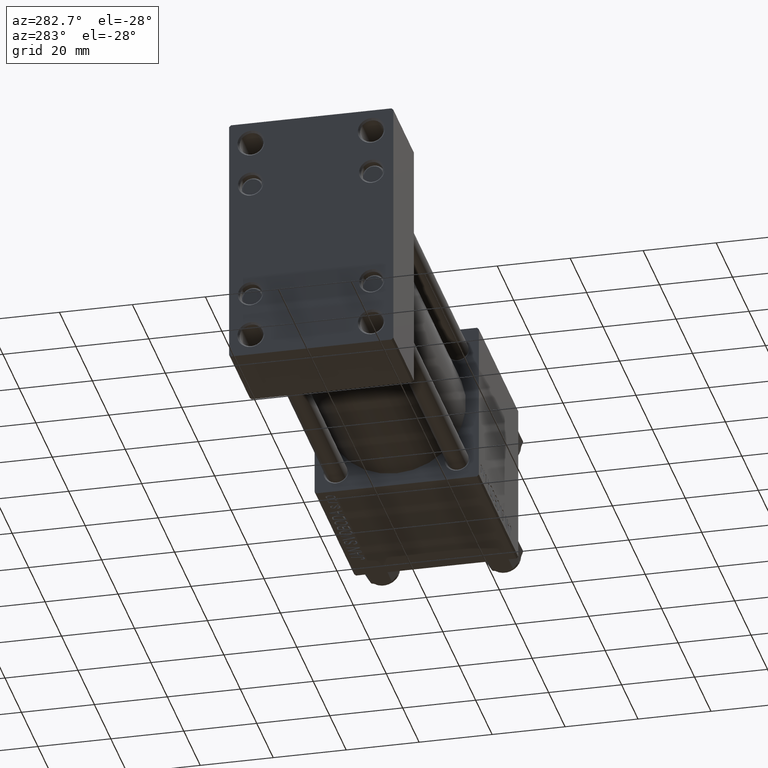
[diagram: clean part render]
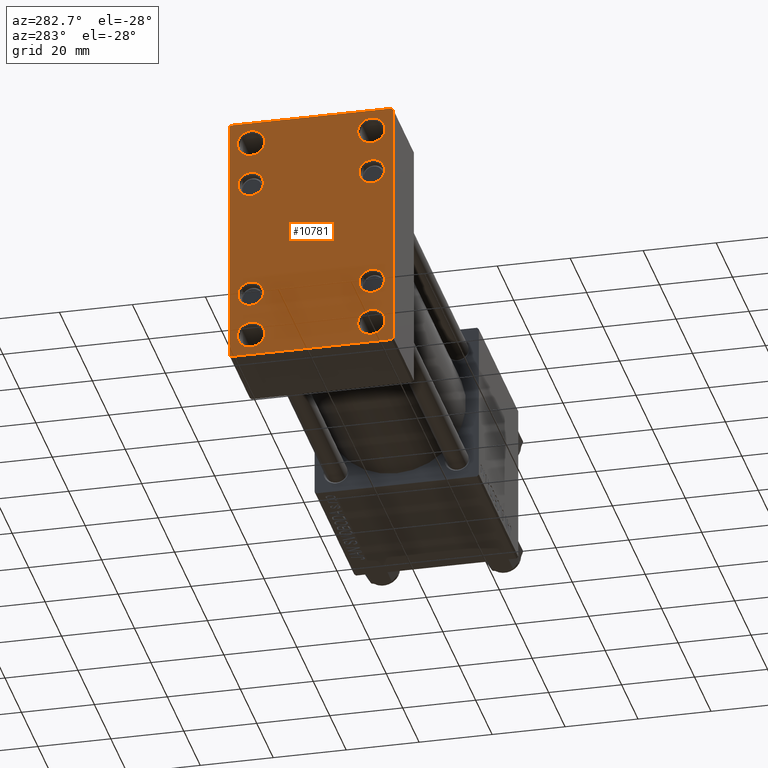
[diagram: same view with one face highlighted and labeled with its STEP entity id]
A machine part, auxiliary view. The second image highlights one B-rep face of the part: STEP entity #10781.
In plain terms, the highlighted planar face has unit normal (-1, 0, 0).
Its self-contained STEP definition (entity closure, byte-faithful):
#123 = CARTESIAN_POINT ( 'NONE',  ( 0.000000000000000000, -16.50000000000000711, 32.74999999999997868 ) ) ;
#331 = VERTEX_POINT ( 'NONE', #2895 ) ;
#456 = VERTEX_POINT ( 'NONE', #43767 ) ;
#591 = AXIS2_PLACEMENT_3D ( 'NONE', #47599, #44306, #2127 ) ;
#599 = ORIENTED_EDGE ( 'NONE', *, *, #5272, .T. ) ;
#639 = ORIENTED_EDGE ( 'NONE', *, *, #27203, .T. ) ;
#1086 = VERTEX_POINT ( 'NONE', #25278 ) ;
#1288 = CIRCLE ( 'NONE', #24661, 3.750000000000013767 ) ;
#1355 = LINE ( 'NONE', #1851, #23888 ) ;
#1421 = DIRECTION ( 'NONE',  ( -0.000000000000000000, 0.000000000000000000, 1.000000000000000000 ) ) ;
#1540 = DIRECTION ( 'NONE',  ( 0.000000000000000000, 0.000000000000000000, 1.000000000000000000 ) ) ;
#1706 = ORIENTED_EDGE ( 'NONE', *, *, #17230, .T. ) ;
#1834 = VERTEX_POINT ( 'NONE', #39962 ) ;
#1851 = CARTESIAN_POINT ( 'NONE',  ( -0.000000000000000000, -28.50000000000015632, 28.49999999999976197 ) ) ;
#2127 = DIRECTION ( 'NONE',  ( 0.000000000000000000, 0.000000000000000000, 1.000000000000000000 ) ) ;
#2240 = CIRCLE ( 'NONE', #591, 3.499999999999996003 ) ;
#2866 = LINE ( 'NONE', #7136, #28806 ) ;
#2895 = CARTESIAN_POINT ( 'NONE',  ( 0.000000000000000000, -16.59999999999999076, -13.10000000000001030 ) ) ;
#2932 = VERTEX_POINT ( 'NONE', #34600 ) ;
#2950 = VERTEX_POINT ( 'NONE', #14904 ) ;
#3037 = LINE ( 'NONE', #45468, #36920 ) ;
#3619 = CARTESIAN_POINT ( 'NONE',  ( 0.000000000000000000, 16.49999999999999289, -29.00000000000000711 ) ) ;
#4254 = AXIS2_PLACEMENT_3D ( 'NONE', #28460, #44154, #24416 ) ;
#4304 = CIRCLE ( 'NONE', #28515, 3.499999999999996003 ) ;
#4755 = ORIENTED_EDGE ( 'NONE', *, *, #10919, .T. ) ;
#4783 = DIRECTION ( 'NONE',  ( 0.000000000000000000, 0.000000000000000000, 1.000000000000000000 ) ) ;
#4956 = FACE_BOUND ( 'NONE', #22044, .T. ) ;
#4999 = VERTEX_POINT ( 'NONE', #8646 ) ;
#5272 = EDGE_CURVE ( 'NONE', #35669, #34070, #19633, .T. ) ;
#5386 = CIRCLE ( 'NONE', #45786, 3.499999999999996003 ) ;
#5450 = FACE_BOUND ( 'NONE', #35214, .T. ) ;
#5648 = CARTESIAN_POINT ( 'NONE',  ( 0.000000000000000000, -21.99999999999998934, -35.00000000000000000 ) ) ;
#5816 = CARTESIAN_POINT ( 'NONE',  ( 0.000000000000000000, 16.49999999999999289, 28.99999999999998934 ) ) ;
#5839 = VERTEX_POINT ( 'NONE', #37982 ) ;
#5933 = AXIS2_PLACEMENT_3D ( 'NONE', #47269, #8848, #38924 ) ;
#6080 = EDGE_CURVE ( 'NONE', #27142, #34409, #36684, .T. ) ;
#6136 = EDGE_CURVE ( 'NONE', #24466, #2950, #6793, .T. ) ;
#6412 = EDGE_LOOP ( 'NONE', ( #7045, #18667 ) ) ;
#6438 = DIRECTION ( 'NONE',  ( 0.000000000000000000, 0.000000000000000000, 1.000000000000000000 ) ) ;
#6582 = ORIENTED_EDGE ( 'NONE', *, *, #44814, .T. ) ;
#6793 = CIRCLE ( 'NONE', #20459, 3.750000000000017319 ) ;
#6964 = ORIENTED_EDGE ( 'NONE', *, *, #8452, .T. ) ;
#7045 = ORIENTED_EDGE ( 'NONE', *, *, #10238, .T. ) ;
#7132 = CARTESIAN_POINT ( 'NONE',  ( 0.000000000000000000, -22.49999999999999645, 35.00000000000000000 ) ) ;
#7136 = CARTESIAN_POINT ( 'NONE',  ( 0.000000000000000000, 22.50000000000000355, 35.00000000000000711 ) ) ;
#8231 = EDGE_CURVE ( 'NONE', #13176, #1834, #4304, .T. ) ;
#8452 = EDGE_CURVE ( 'NONE', #33132, #49482, #35767, .T. ) ;
#8550 = VERTEX_POINT ( 'NONE', #28790 ) ;
#8646 = CARTESIAN_POINT ( 'NONE',  ( 0.000000000000000000, -22.49999999999999645, -34.50000000000000000 ) ) ;
#8728 = CARTESIAN_POINT ( 'NONE',  ( 0.000000000000000000, -16.59999999999999076, 16.60000000000000853 ) ) ;
#8848 = DIRECTION ( 'NONE',  ( 1.000000000000000000, -0.000000000000000000, 0.000000000000000000 ) ) ;
#8977 = DIRECTION ( 'NONE',  ( 1.000000000000000000, -0.000000000000000000, 0.000000000000000000 ) ) ;
#8987 = FACE_BOUND ( 'NONE', #32891, .T. ) ;
#9060 = DIRECTION ( 'NONE',  ( 1.000000000000000000, -0.000000000000000000, 0.000000000000000000 ) ) ;
#9298 = DIRECTION ( 'NONE',  ( 0.000000000000000000, 0.000000000000000000, 1.000000000000000000 ) ) ;
#9382 = CIRCLE ( 'NONE', #38416, 3.499999999999996003 ) ;
#9386 = DIRECTION ( 'NONE',  ( 1.000000000000000000, -0.000000000000000000, 0.000000000000000000 ) ) ;
#9619 = CARTESIAN_POINT ( 'NONE',  ( 0.000000000000000000, -16.59999999999999076, -20.10000000000000497 ) ) ;
#9811 = DIRECTION ( 'NONE',  ( 1.000000000000000000, -0.000000000000000000, 0.000000000000000000 ) ) ;
#10238 = EDGE_CURVE ( 'NONE', #2950, #24466, #30173, .T. ) ;
#10239 = CIRCLE ( 'NONE', #26372, 3.499999999999996003 ) ;
#10415 = CARTESIAN_POINT ( 'NONE',  ( 0.000000000000000000, 22.50000000000000355, 34.49999999999999289 ) ) ;
#10470 = DIRECTION ( 'NONE',  ( 1.000000000000000000, -0.000000000000000000, 0.000000000000000000 ) ) ;
#10781 = ADVANCED_FACE ( 'NONE', ( #35748, #35249, #4956, #8987, #27668, #5450, #31709, #32211, #24630 ), #12263, .T. ) ;
#10822 = AXIS2_PLACEMENT_3D ( 'NONE', #20570, #43110, #1421 ) ;
#10919 = EDGE_CURVE ( 'NONE', #34070, #35669, #17307, .T. ) ;
#11236 = ORIENTED_EDGE ( 'NONE', *, *, #14648, .T. ) ;
#11752 = AXIS2_PLACEMENT_3D ( 'NONE', #43341, #24106, #38551 ) ;
#12250 = CARTESIAN_POINT ( 'NONE',  ( 0.000000000000000000, -16.59999999999999076, 13.10000000000001030 ) ) ;
#12263 = PLANE ( 'NONE',  #10822 ) ;
#12480 = ORIENTED_EDGE ( 'NONE', *, *, #46417, .T. ) ;
#12769 = AXIS2_PLACEMENT_3D ( 'NONE', #3619, #45802, #26564 ) ;
#12935 = DIRECTION ( 'NONE',  ( 0.000000000000000000, -1.000000000000000000, -1.541976423090495387E-16 ) ) ;
#13134 = EDGE_CURVE ( 'NONE', #22292, #39337, #20599, .T. ) ;
#13176 = VERTEX_POINT ( 'NONE', #12250 ) ;
#13560 = CARTESIAN_POINT ( 'NONE',  ( 0.000000000000000000, 28.49999999999984013, -28.50000000000024158 ) ) ;
#13824 = EDGE_CURVE ( 'NONE', #5839, #2932, #1288, .T. ) ;
#14316 = EDGE_CURVE ( 'NONE', #29186, #1086, #1355, .T. ) ;
#14648 = EDGE_CURVE ( 'NONE', #1834, #13176, #9382, .T. ) ;
#14904 = CARTESIAN_POINT ( 'NONE',  ( 0.000000000000000000, 16.49999999999999289, 32.75000000000000711 ) ) ;
#15518 = VERTEX_POINT ( 'NONE', #9619 ) ;
#15904 = VERTEX_POINT ( 'NONE', #10415 ) ;
#15967 = EDGE_CURVE ( 'NONE', #29186, #4999, #41744, .T. ) ;
#16256 = EDGE_CURVE ( 'NONE', #8550, #21685, #5386, .T. ) ;
#16730 = EDGE_CURVE ( 'NONE', #49482, #33132, #2240, .T. ) ;
#16763 = VERTEX_POINT ( 'NONE', #17242 ) ;
#16890 = EDGE_CURVE ( 'NONE', #15904, #16763, #2866, .T. ) ;
#16990 = CARTESIAN_POINT ( 'NONE',  ( 0.000000000000000000, -16.50000000000000711, -32.75000000000002132 ) ) ;
#17216 = CARTESIAN_POINT ( 'NONE',  ( 0.000000000000000000, 16.49999999999999289, 28.99999999999998934 ) ) ;
#17230 = EDGE_CURVE ( 'NONE', #15518, #331, #10239, .T. ) ;
#17242 = CARTESIAN_POINT ( 'NONE',  ( 0.000000000000000000, 22.50000000000000355, -34.49999999999999289 ) ) ;
#17307 = CIRCLE ( 'NONE', #36680, 3.750000000000013767 ) ;
#17375 = DIRECTION ( 'NONE',  ( 0.000000000000000000, 0.000000000000000000, 1.000000000000000000 ) ) ;
#17382 = DIRECTION ( 'NONE',  ( 1.000000000000000000, -0.000000000000000000, 0.000000000000000000 ) ) ;
#17865 = DIRECTION ( 'NONE',  ( 0.000000000000000000, 0.000000000000000000, 1.000000000000000000 ) ) ;
#18667 = ORIENTED_EDGE ( 'NONE', *, *, #6136, .T. ) ;
#18942 = CARTESIAN_POINT ( 'NONE',  ( 0.000000000000000000, -16.50000000000000711, -29.00000000000000711 ) ) ;
#19633 = CIRCLE ( 'NONE', #47921, 3.750000000000013767 ) ;
#19701 = AXIS2_PLACEMENT_3D ( 'NONE', #5816, #35868, #1540 ) ;
#20459 = AXIS2_PLACEMENT_3D ( 'NONE', #17216, #21005, #28090 ) ;
#20570 = CARTESIAN_POINT ( 'NONE',  ( 0.000000000000000000, 0.000000000000000000, 0.000000000000000000 ) ) ;
#20599 = CIRCLE ( 'NONE', #11752, 3.749999999999989342 ) ;
#20708 = EDGE_CURVE ( 'NONE', #34409, #4999, #42593, .T. ) ;
#20999 = VECTOR ( 'NONE', #30352, 999.9999999999998863 ) ;
#21005 = DIRECTION ( 'NONE',  ( 1.000000000000000000, -0.000000000000000000, 0.000000000000000000 ) ) ;
#21685 = VERTEX_POINT ( 'NONE', #48886 ) ;
#22044 = EDGE_LOOP ( 'NONE', ( #599, #4755 ) ) ;
#22149 = CARTESIAN_POINT ( 'NONE',  ( 0.000000000000000000, -16.59999999999999076, -16.60000000000000853 ) ) ;
#22292 = VERTEX_POINT ( 'NONE', #31208 ) ;
#22655 = CARTESIAN_POINT ( 'NONE',  ( 0.000000000000000000, -16.50000000000000711, 28.99999999999998934 ) ) ;
#22950 = DIRECTION ( 'NONE',  ( 0.000000000000000000, -1.000000000000000000, -1.541976423090495387E-16 ) ) ;
#23092 = EDGE_LOOP ( 'NONE', ( #6582, #25469 ) ) ;
#23103 = EDGE_CURVE ( 'NONE', #456, #1086, #3037, .T. ) ;
#23728 = DIRECTION ( 'NONE',  ( 1.000000000000000000, -0.000000000000000000, 0.000000000000000000 ) ) ;
#23888 = VECTOR ( 'NONE', #24813, 1000.000000000000000 ) ;
#24106 = DIRECTION ( 'NONE',  ( 1.000000000000000000, -0.000000000000000000, 0.000000000000000000 ) ) ;
#24416 = DIRECTION ( 'NONE',  ( 0.000000000000000000, 0.000000000000000000, 1.000000000000000000 ) ) ;
#24466 = VERTEX_POINT ( 'NONE', #47200 ) ;
#24593 = EDGE_CURVE ( 'NONE', #16763, #27142, #25175, .T. ) ;
#24630 = FACE_OUTER_BOUND ( 'NONE', #26157, .T. ) ;
#24661 = AXIS2_PLACEMENT_3D ( 'NONE', #32018, #47708, #9298 ) ;
#24813 = DIRECTION ( 'NONE',  ( -0.000000000000000000, 0.7071067811865426878, 0.7071067811865524577 ) ) ;
#25175 = LINE ( 'NONE', #13560, #35295 ) ;
#25278 = CARTESIAN_POINT ( 'NONE',  ( 0.000000000000000000, -21.99999999999998934, 35.00000000000000000 ) ) ;
#25403 = CIRCLE ( 'NONE', #36698, 3.499999999999996003 ) ;
#25469 = ORIENTED_EDGE ( 'NONE', *, *, #13134, .T. ) ;
#25742 = DIRECTION ( 'NONE',  ( 0.000000000000000000, 0.000000000000000000, 1.000000000000000000 ) ) ;
#25903 = ORIENTED_EDGE ( 'NONE', *, *, #14316, .T. ) ;
#26157 = EDGE_LOOP ( 'NONE', ( #33917, #47822, #43089, #34168, #33350, #25903, #46873, #31555 ) ) ;
#26372 = AXIS2_PLACEMENT_3D ( 'NONE', #22149, #17382, #17865 ) ;
#26398 = ORIENTED_EDGE ( 'NONE', *, *, #41108, .T. ) ;
#26550 = CARTESIAN_POINT ( 'NONE',  ( 0.000000000000000000, 28.50000000000030909, 28.49999999999952038 ) ) ;
#26564 = DIRECTION ( 'NONE',  ( 0.000000000000000000, 0.000000000000000000, 1.000000000000000000 ) ) ;
#26581 = EDGE_LOOP ( 'NONE', ( #11236, #42069 ) ) ;
#27142 = VERTEX_POINT ( 'NONE', #28877 ) ;
#27203 = EDGE_CURVE ( 'NONE', #2932, #5839, #45044, .T. ) ;
#27298 = LINE ( 'NONE', #26550, #20999 ) ;
#27668 = FACE_BOUND ( 'NONE', #26581, .T. ) ;
#28090 = DIRECTION ( 'NONE',  ( 0.000000000000000000, 0.000000000000000000, 1.000000000000000000 ) ) ;
#28214 = DIRECTION ( 'NONE',  ( -0.000000000000000000, -0.7071067811865525687, -0.7071067811865425767 ) ) ;
#28241 = CARTESIAN_POINT ( 'NONE',  ( 0.000000000000000000, 16.59999999999999787, 16.60000000000000497 ) ) ;
#28405 = DIRECTION ( 'NONE',  ( 0.000000000000000000, 0.000000000000000000, 1.000000000000000000 ) ) ;
#28460 = CARTESIAN_POINT ( 'NONE',  ( 0.000000000000000000, -16.59999999999999076, -16.60000000000000853 ) ) ;
#28515 = AXIS2_PLACEMENT_3D ( 'NONE', #8728, #8977, #28405 ) ;
#28790 = CARTESIAN_POINT ( 'NONE',  ( 0.000000000000000000, 16.59999999999999787, 13.10000000000000675 ) ) ;
#28806 = VECTOR ( 'NONE', #37448, 1000.000000000000000 ) ;
#28877 = CARTESIAN_POINT ( 'NONE',  ( 0.000000000000000000, 21.99999999999999645, -34.99999999999999289 ) ) ;
#29186 = VERTEX_POINT ( 'NONE', #39972 ) ;
#30173 = CIRCLE ( 'NONE', #19701, 3.750000000000017319 ) ;
#30352 = DIRECTION ( 'NONE',  ( 0.000000000000000000, 0.7071067811865376918, -0.7071067811865574537 ) ) ;
#30945 = DIRECTION ( 'NONE',  ( 0.000000000000000000, -0.7071067811865426878, 0.7071067811865524577 ) ) ;
#31208 = CARTESIAN_POINT ( 'NONE',  ( 0.000000000000000000, -16.50000000000000711, 25.25000000000000000 ) ) ;
#31555 = ORIENTED_EDGE ( 'NONE', *, *, #33087, .T. ) ;
#31709 = FACE_BOUND ( 'NONE', #46827, .T. ) ;
#32018 = CARTESIAN_POINT ( 'NONE',  ( 0.000000000000000000, 16.49999999999999289, -29.00000000000000711 ) ) ;
#32211 = FACE_BOUND ( 'NONE', #41564, .T. ) ;
#32587 = AXIS2_PLACEMENT_3D ( 'NONE', #22655, #9386, #45683 ) ;
#32814 = VECTOR ( 'NONE', #32904, 1000.000000000000000 ) ;
#32891 = EDGE_LOOP ( 'NONE', ( #39293, #639 ) ) ;
#32904 = DIRECTION ( 'NONE',  ( 0.000000000000000000, 0.000000000000000000, -1.000000000000000000 ) ) ;
#33087 = EDGE_CURVE ( 'NONE', #456, #15904, #27298, .T. ) ;
#33132 = VERTEX_POINT ( 'NONE', #35130 ) ;
#33350 = ORIENTED_EDGE ( 'NONE', *, *, #15967, .F. ) ;
#33917 = ORIENTED_EDGE ( 'NONE', *, *, #16890, .T. ) ;
#34070 = VERTEX_POINT ( 'NONE', #16990 ) ;
#34168 = ORIENTED_EDGE ( 'NONE', *, *, #20708, .T. ) ;
#34409 = VERTEX_POINT ( 'NONE', #5648 ) ;
#34600 = CARTESIAN_POINT ( 'NONE',  ( 0.000000000000000000, 16.49999999999999289, -32.75000000000002132 ) ) ;
#35130 = CARTESIAN_POINT ( 'NONE',  ( 0.000000000000000000, 16.59999999999999787, -20.10000000000000142 ) ) ;
#35214 = EDGE_LOOP ( 'NONE', ( #26398, #1706 ) ) ;
#35249 = FACE_BOUND ( 'NONE', #23092, .T. ) ;
#35295 = VECTOR ( 'NONE', #28214, 999.9999999999998863 ) ;
#35669 = VERTEX_POINT ( 'NONE', #39693 ) ;
#35748 = FACE_BOUND ( 'NONE', #6412, .T. ) ;
#35767 = CIRCLE ( 'NONE', #5933, 3.499999999999996003 ) ;
#35868 = DIRECTION ( 'NONE',  ( 1.000000000000000000, -0.000000000000000000, 0.000000000000000000 ) ) ;
#36680 = AXIS2_PLACEMENT_3D ( 'NONE', #48148, #10470, #6438 ) ;
#36684 = LINE ( 'NONE', #47573, #37321 ) ;
#36698 = AXIS2_PLACEMENT_3D ( 'NONE', #28241, #9060, #4783 ) ;
#36845 = ORIENTED_EDGE ( 'NONE', *, *, #16256, .T. ) ;
#36920 = VECTOR ( 'NONE', #22950, 1000.000000000000000 ) ;
#37321 = VECTOR ( 'NONE', #12935, 1000.000000000000000 ) ;
#37448 = DIRECTION ( 'NONE',  ( 0.000000000000000000, 0.000000000000000000, -1.000000000000000000 ) ) ;
#37452 = CIRCLE ( 'NONE', #32587, 3.749999999999989342 ) ;
#37982 = CARTESIAN_POINT ( 'NONE',  ( 0.000000000000000000, 16.49999999999999289, -25.24999999999999289 ) ) ;
#38416 = AXIS2_PLACEMENT_3D ( 'NONE', #44722, #49265, #25742 ) ;
#38426 = DIRECTION ( 'NONE',  ( 0.000000000000000000, 0.000000000000000000, 1.000000000000000000 ) ) ;
#38551 = DIRECTION ( 'NONE',  ( 0.000000000000000000, 0.000000000000000000, 1.000000000000000000 ) ) ;
#38924 = DIRECTION ( 'NONE',  ( 0.000000000000000000, 0.000000000000000000, 1.000000000000000000 ) ) ;
#39293 = ORIENTED_EDGE ( 'NONE', *, *, #13824, .T. ) ;
#39337 = VERTEX_POINT ( 'NONE', #123 ) ;
#39693 = CARTESIAN_POINT ( 'NONE',  ( 0.000000000000000000, -16.50000000000000711, -25.24999999999999289 ) ) ;
#39962 = CARTESIAN_POINT ( 'NONE',  ( 0.000000000000000000, -16.59999999999999076, 20.10000000000000853 ) ) ;
#39972 = CARTESIAN_POINT ( 'NONE',  ( 0.000000000000000000, -22.49999999999999645, 34.50000000000000000 ) ) ;
#41108 = EDGE_CURVE ( 'NONE', #331, #15518, #47825, .T. ) ;
#41564 = EDGE_LOOP ( 'NONE', ( #12480, #36845 ) ) ;
#41744 = LINE ( 'NONE', #7132, #32814 ) ;
#42069 = ORIENTED_EDGE ( 'NONE', *, *, #8231, .T. ) ;
#42593 = LINE ( 'NONE', #46887, #48988 ) ;
#43089 = ORIENTED_EDGE ( 'NONE', *, *, #6080, .T. ) ;
#43110 = DIRECTION ( 'NONE',  ( -1.000000000000000000, 0.000000000000000000, -0.000000000000000000 ) ) ;
#43341 = CARTESIAN_POINT ( 'NONE',  ( 0.000000000000000000, -16.50000000000000711, 28.99999999999998934 ) ) ;
#43767 = CARTESIAN_POINT ( 'NONE',  ( 0.000000000000000000, 22.00000000000000355, 35.00000000000000711 ) ) ;
#44154 = DIRECTION ( 'NONE',  ( 1.000000000000000000, -0.000000000000000000, 0.000000000000000000 ) ) ;
#44184 = CARTESIAN_POINT ( 'NONE',  ( 0.000000000000000000, 16.59999999999999787, 16.60000000000000497 ) ) ;
#44306 = DIRECTION ( 'NONE',  ( 1.000000000000000000, -0.000000000000000000, 0.000000000000000000 ) ) ;
#44612 = ORIENTED_EDGE ( 'NONE', *, *, #16730, .T. ) ;
#44722 = CARTESIAN_POINT ( 'NONE',  ( 0.000000000000000000, -16.59999999999999076, 16.60000000000000853 ) ) ;
#44814 = EDGE_CURVE ( 'NONE', #39337, #22292, #37452, .T. ) ;
#45044 = CIRCLE ( 'NONE', #12769, 3.750000000000013767 ) ;
#45468 = CARTESIAN_POINT ( 'NONE',  ( 0.000000000000000000, 22.50000000000000355, 35.00000000000000711 ) ) ;
#45683 = DIRECTION ( 'NONE',  ( 0.000000000000000000, 0.000000000000000000, 1.000000000000000000 ) ) ;
#45786 = AXIS2_PLACEMENT_3D ( 'NONE', #44184, #9811, #17375 ) ;
#45802 = DIRECTION ( 'NONE',  ( 1.000000000000000000, -0.000000000000000000, 0.000000000000000000 ) ) ;
#46417 = EDGE_CURVE ( 'NONE', #21685, #8550, #25403, .T. ) ;
#46827 = EDGE_LOOP ( 'NONE', ( #44612, #6964 ) ) ;
#46873 = ORIENTED_EDGE ( 'NONE', *, *, #23103, .F. ) ;
#46887 = CARTESIAN_POINT ( 'NONE',  ( 0.000000000000000000, -28.50000000000015632, -28.49999999999976197 ) ) ;
#47200 = CARTESIAN_POINT ( 'NONE',  ( 0.000000000000000000, 16.49999999999999289, 25.24999999999997513 ) ) ;
#47269 = CARTESIAN_POINT ( 'NONE',  ( 0.000000000000000000, 16.59999999999999787, -16.60000000000000497 ) ) ;
#47573 = CARTESIAN_POINT ( 'NONE',  ( 0.000000000000000000, 22.50000000000000355, -34.99999999999999289 ) ) ;
#47599 = CARTESIAN_POINT ( 'NONE',  ( 0.000000000000000000, 16.59999999999999787, -16.60000000000000497 ) ) ;
#47708 = DIRECTION ( 'NONE',  ( 1.000000000000000000, -0.000000000000000000, 0.000000000000000000 ) ) ;
#47822 = ORIENTED_EDGE ( 'NONE', *, *, #24593, .T. ) ;
#47825 = CIRCLE ( 'NONE', #4254, 3.499999999999996003 ) ;
#47921 = AXIS2_PLACEMENT_3D ( 'NONE', #18942, #23728, #38426 ) ;
#48148 = CARTESIAN_POINT ( 'NONE',  ( 0.000000000000000000, -16.50000000000000711, -29.00000000000000711 ) ) ;
#48886 = CARTESIAN_POINT ( 'NONE',  ( 0.000000000000000000, 16.59999999999999787, 20.10000000000000142 ) ) ;
#48988 = VECTOR ( 'NONE', #30945, 1000.000000000000000 ) ;
#49265 = DIRECTION ( 'NONE',  ( 1.000000000000000000, -0.000000000000000000, 0.000000000000000000 ) ) ;
#49482 = VERTEX_POINT ( 'NONE', #49751 ) ;
#49751 = CARTESIAN_POINT ( 'NONE',  ( 0.000000000000000000, 16.59999999999999787, -13.10000000000000675 ) ) ;